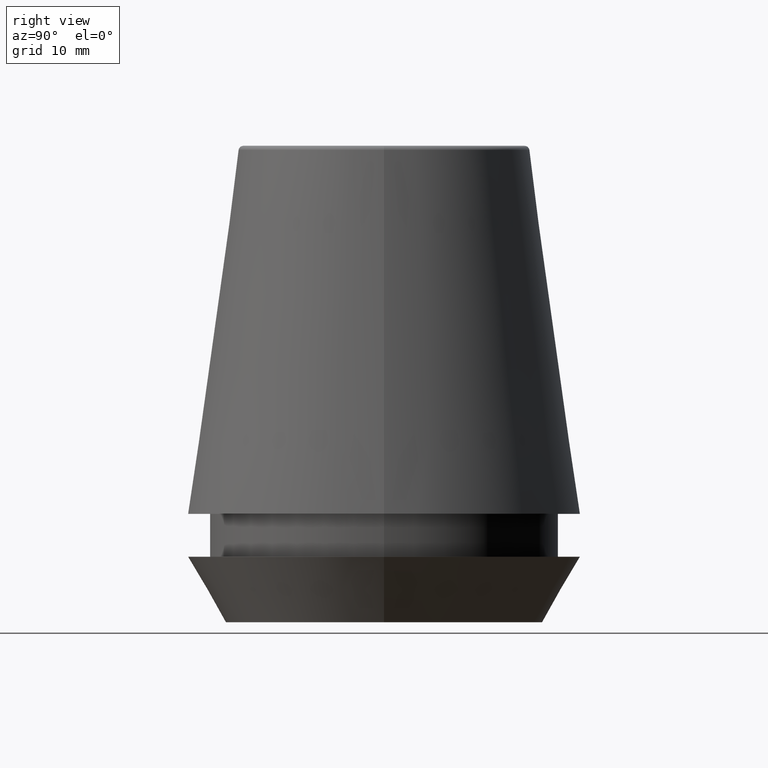
[diagram: clean part render]
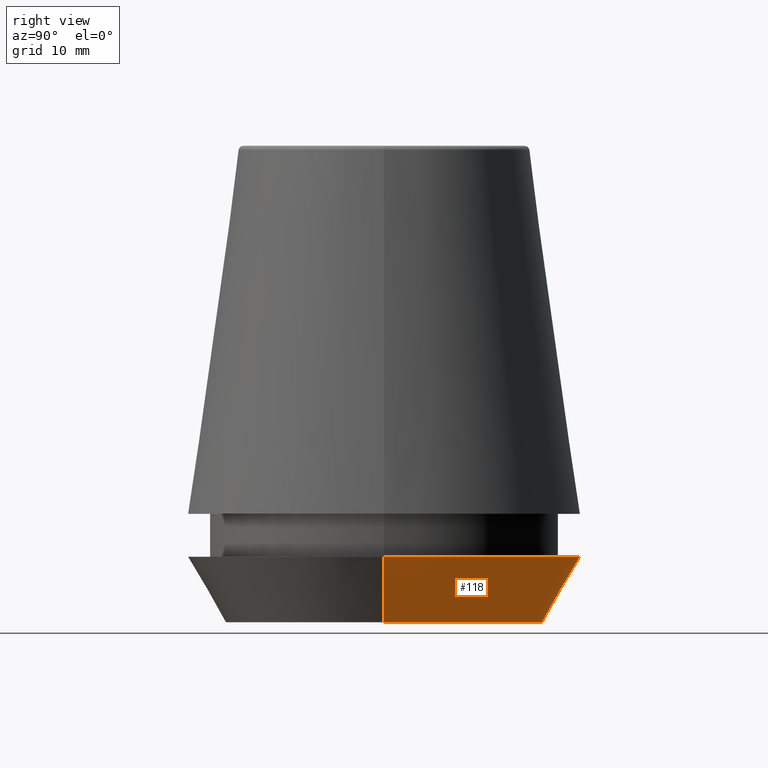
[diagram: same view with one face highlighted and labeled with its STEP entity id]
A machine part, right view. The second image highlights one B-rep face of the part: STEP entity #118.
In plain terms, the highlighted conical surface has half-angle 30 deg.
Its self-contained STEP definition (entity closure, byte-faithful):
#5 = VERTEX_POINT ( 'NONE', #352 ) ;
#15 = DIRECTION ( 'NONE',  ( -0.4999999999999947300, 6.123233995736700700E-017, 0.8660254037844418200 ) ) ;
#18 = AXIS2_PLACEMENT_3D ( 'NONE', #196, #75, #138 ) ;
#42 = AXIS2_PLACEMENT_3D ( 'NONE', #102, #200, #247 ) ;
#60 = EDGE_CURVE ( 'NONE', #5, #215, #281, .T. ) ;
#66 = EDGE_CURVE ( 'NONE', #140, #245, #229, .T. ) ;
#68 = CARTESIAN_POINT ( 'NONE',  ( 16.50000000000000000, 0.0000000000000000000, 5.500000000000005300 ) ) ;
#75 = DIRECTION ( 'NONE',  ( -0.0000000000000000000, -0.0000000000000000000, 1.000000000000000000 ) ) ;
#79 = EDGE_LOOP ( 'NONE', ( #209, #346, #387, #286 ) ) ;
#85 = VECTOR ( 'NONE', #15, 999.9999999999998900 ) ;
#95 = CONICAL_SURFACE ( 'NONE', #145, 13.32457351945710200, 0.5235987755982927100 ) ;
#102 = CARTESIAN_POINT ( 'NONE',  ( 0.0000000000000000000, 0.0000000000000000000, 0.0000000000000000000 ) ) ;
#118 = ADVANCED_FACE ( 'NONE', ( #238 ), #95, .T. ) ;
#129 = CARTESIAN_POINT ( 'NONE',  ( -16.50000000000000000, 2.020667218593133100E-015, 5.500000000000005300 ) ) ;
#138 = DIRECTION ( 'NONE',  ( 1.000000000000000000, 0.0000000000000000000, 0.0000000000000000000 ) ) ;
#140 = VERTEX_POINT ( 'NONE', #333 ) ;
#145 = AXIS2_PLACEMENT_3D ( 'NONE', #306, #163, #370 ) ;
#163 = DIRECTION ( 'NONE',  ( -0.0000000000000000000, -0.0000000000000000000, 1.000000000000000000 ) ) ;
#168 = CIRCLE ( 'NONE', #18, 16.50000000000000000 ) ;
#189 = VECTOR ( 'NONE', #324, 999.9999999999998900 ) ;
#196 = CARTESIAN_POINT ( 'NONE',  ( 0.0000000000000000000, 0.0000000000000000000, 5.500000000000005300 ) ) ;
#200 = DIRECTION ( 'NONE',  ( -0.0000000000000000000, -0.0000000000000000000, 1.000000000000000000 ) ) ;
#209 = ORIENTED_EDGE ( 'NONE', *, *, #291, .T. ) ;
#215 = VERTEX_POINT ( 'NONE', #68 ) ;
#229 = LINE ( 'NONE', #310, #85 ) ;
#238 = FACE_OUTER_BOUND ( 'NONE', #79, .T. ) ;
#245 = VERTEX_POINT ( 'NONE', #129 ) ;
#247 = DIRECTION ( 'NONE',  ( 1.000000000000000000, 0.0000000000000000000, 0.0000000000000000000 ) ) ;
#276 = EDGE_CURVE ( 'NONE', #215, #245, #168, .T. ) ;
#279 = CARTESIAN_POINT ( 'NONE',  ( 13.32457351945710200, 0.0000000000000000000, 0.0000000000000000000 ) ) ;
#281 = LINE ( 'NONE', #279, #189 ) ;
#286 = ORIENTED_EDGE ( 'NONE', *, *, #60, .F. ) ;
#291 = EDGE_CURVE ( 'NONE', #5, #140, #320, .T. ) ;
#306 = CARTESIAN_POINT ( 'NONE',  ( 0.0000000000000000000, 0.0000000000000000000, 0.0000000000000000000 ) ) ;
#310 = CARTESIAN_POINT ( 'NONE',  ( -13.32457351945710200, 1.631789631060672300E-015, 0.0000000000000000000 ) ) ;
#320 = CIRCLE ( 'NONE', #42, 13.32457351945710200 ) ;
#324 = DIRECTION ( 'NONE',  ( 0.4999999999999947300, 0.0000000000000000000, 0.8660254037844418200 ) ) ;
#333 = CARTESIAN_POINT ( 'NONE',  ( -13.32457351945710200, 1.826228424826902600E-015, 0.0000000000000000000 ) ) ;
#346 = ORIENTED_EDGE ( 'NONE', *, *, #66, .T. ) ;
#352 = CARTESIAN_POINT ( 'NONE',  ( 13.32457351945710200, 0.0000000000000000000, 0.0000000000000000000 ) ) ;
#370 = DIRECTION ( 'NONE',  ( 1.000000000000000000, 0.0000000000000000000, 0.0000000000000000000 ) ) ;
#387 = ORIENTED_EDGE ( 'NONE', *, *, #276, .F. ) ;